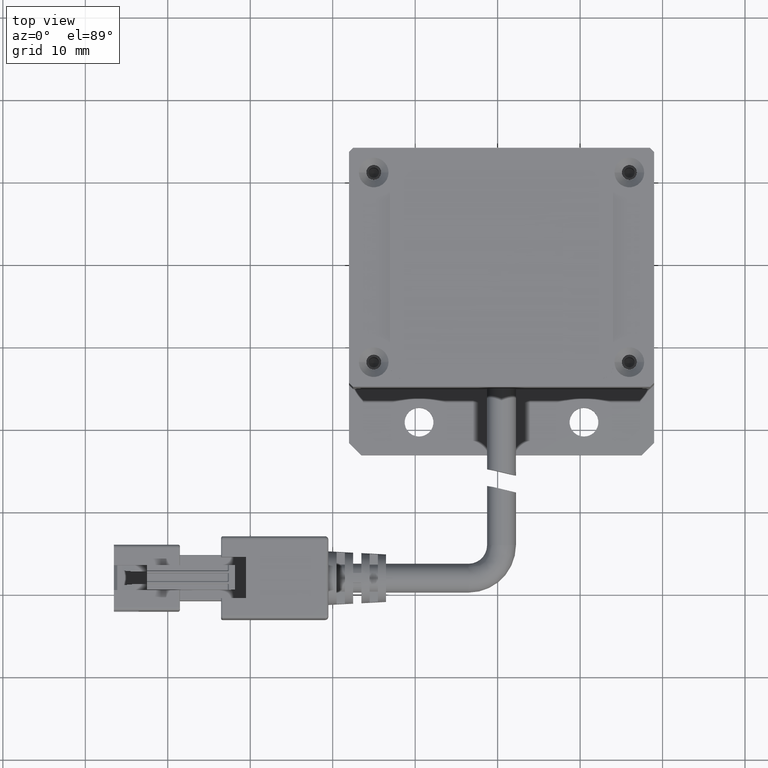
[diagram: clean part render]
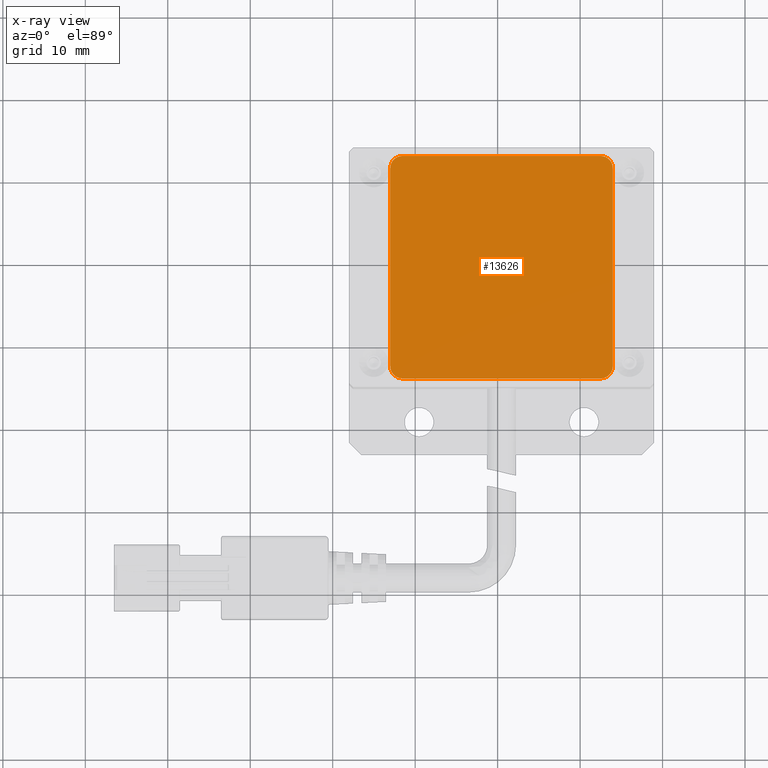
[diagram: x-ray — body ghosted, one internal face saturated and labeled with its STEP entity id]
A machine part, top view, then the same camera in x-ray: the body is ghosted and one INTERNAL B-rep face — a face not visible from any outside direction — is saturated and labeled: STEP entity #13626.
In plain terms, the highlighted planar face has unit normal (0, 0, 1).
Its self-contained STEP definition (entity closure, byte-faithful):
#294 = LINE ( 'NONE', #10610, #12283 ) ;
#511 = CARTESIAN_POINT ( 'NONE',  ( -13.02940053455517100, -12.55364642993505300, 15.99999999998363100 ) ) ;
#695 = CIRCLE ( 'NONE', #18391, 1.500000000000001300 ) ;
#1024 = CIRCLE ( 'NONE', #15726, 1.500000000000001300 ) ;
#1338 = DIRECTION ( 'NONE',  ( 0.0000000000000000000, 0.0000000000000000000, 1.000000000000000000 ) ) ;
#2227 = DIRECTION ( 'NONE',  ( 0.0000000000000000000, 0.0000000000000000000, 1.000000000000000000 ) ) ;
#2974 = VERTEX_POINT ( 'NONE', #15655 ) ;
#4001 = VECTOR ( 'NONE', #15677, 1000.000000000000000 ) ;
#4663 = VERTEX_POINT ( 'NONE', #9354 ) ;
#4776 = CARTESIAN_POINT ( 'NONE',  ( 13.97059946544482900, -12.55364642993505300, 15.99999999998363100 ) ) ;
#5622 = CARTESIAN_POINT ( 'NONE',  ( 12.47059946544482800, -14.05364642993505300, 15.99999999998363100 ) ) ;
#6072 = LINE ( 'NONE', #9579, #17504 ) ;
#6339 = CARTESIAN_POINT ( 'NONE',  ( 12.47059946544482800, -12.55364642993505300, 15.99999999998363100 ) ) ;
#6585 = VECTOR ( 'NONE', #15061, 1000.000000000000000 ) ;
#6655 = VERTEX_POINT ( 'NONE', #5622 ) ;
#6837 = DIRECTION ( 'NONE',  ( 0.0000000000000000000, 0.0000000000000000000, 1.000000000000000000 ) ) ;
#7299 = DIRECTION ( 'NONE',  ( 0.0000000000000000000, 0.0000000000000000000, 1.000000000000000000 ) ) ;
#7587 = ORIENTED_EDGE ( 'NONE', *, *, #10517, .F. ) ;
#7704 = ORIENTED_EDGE ( 'NONE', *, *, #11013, .F. ) ;
#7938 = DIRECTION ( 'NONE',  ( 1.000000000000000000, 0.0000000000000000000, 0.0000000000000000000 ) ) ;
#7980 = AXIS2_PLACEMENT_3D ( 'NONE', #16183, #6837, #17712 ) ;
#8130 = VERTEX_POINT ( 'NONE', #18530 ) ;
#8891 = AXIS2_PLACEMENT_3D ( 'NONE', #11588, #2227, #13194 ) ;
#9354 = CARTESIAN_POINT ( 'NONE',  ( -11.52940053455516900, -14.05364642993505200, 15.99999999998363100 ) ) ;
#9461 = AXIS2_PLACEMENT_3D ( 'NONE', #11954, #7299, #18137 ) ;
#9579 = CARTESIAN_POINT ( 'NONE',  ( -11.52940053455516900, -14.05364642993505200, 15.99999999998363100 ) ) ;
#9603 = CIRCLE ( 'NONE', #8891, 1.500000000000001300 ) ;
#10406 = CARTESIAN_POINT ( 'NONE',  ( 12.47059946544482800, 12.94635357006494500, 15.99999999998363100 ) ) ;
#10517 = EDGE_CURVE ( 'NONE', #19905, #8130, #9603, .T. ) ;
#10610 = CARTESIAN_POINT ( 'NONE',  ( -13.02940053455517100, 11.44635357006494500, 15.99999999998363100 ) ) ;
#10680 = CARTESIAN_POINT ( 'NONE',  ( 12.47059946544482800, 11.44635357006494500, 15.99999999998363100 ) ) ;
#10990 = CARTESIAN_POINT ( 'NONE',  ( -11.52940053455516900, 12.94635357006494500, 15.99999999998363100 ) ) ;
#11013 = EDGE_CURVE ( 'NONE', #8130, #15654, #294, .T. ) ;
#11066 = EDGE_LOOP ( 'NONE', ( #7587, #14000, #15569, #19041, #18071, #14057, #14939, #7704 ) ) ;
#11288 = CIRCLE ( 'NONE', #7980, 1.500000000000001300 ) ;
#11379 = EDGE_CURVE ( 'NONE', #15654, #4663, #11288, .T. ) ;
#11588 = CARTESIAN_POINT ( 'NONE',  ( -11.52940053455516900, 11.44635357006494500, 15.99999999998363100 ) ) ;
#11883 = PLANE ( 'NONE',  #9461 ) ;
#11954 = CARTESIAN_POINT ( 'NONE',  ( -11.52940053455516900, 11.44635357006494500, 15.99999999998363100 ) ) ;
#12209 = EDGE_CURVE ( 'NONE', #4663, #6655, #6072, .T. ) ;
#12270 = DIRECTION ( 'NONE',  ( 1.000000000000000000, 0.0000000000000000000, 0.0000000000000000000 ) ) ;
#12283 = VECTOR ( 'NONE', #19895, 1000.000000000000000 ) ;
#12294 = LINE ( 'NONE', #4776, #4001 ) ;
#12779 = EDGE_CURVE ( 'NONE', #6655, #18917, #695, .T. ) ;
#13064 = CARTESIAN_POINT ( 'NONE',  ( 13.97059946544482900, -12.55364642993505300, 15.99999999998363100 ) ) ;
#13194 = DIRECTION ( 'NONE',  ( 1.000000000000000000, 0.0000000000000000000, 0.0000000000000000000 ) ) ;
#13248 = EDGE_CURVE ( 'NONE', #18917, #2974, #12294, .T. ) ;
#13626 = ADVANCED_FACE ( 'NONE', ( #17548 ), #11883, .F. ) ;
#13758 = EDGE_CURVE ( 'NONE', #2974, #17657, #1024, .T. ) ;
#14000 = ORIENTED_EDGE ( 'NONE', *, *, #14253, .F. ) ;
#14057 = ORIENTED_EDGE ( 'NONE', *, *, #12209, .F. ) ;
#14253 = EDGE_CURVE ( 'NONE', #17657, #19905, #17070, .T. ) ;
#14939 = ORIENTED_EDGE ( 'NONE', *, *, #11379, .F. ) ;
#15061 = DIRECTION ( 'NONE',  ( -1.000000000000000000, 0.0000000000000000000, 0.0000000000000000000 ) ) ;
#15569 = ORIENTED_EDGE ( 'NONE', *, *, #13758, .F. ) ;
#15654 = VERTEX_POINT ( 'NONE', #511 ) ;
#15655 = CARTESIAN_POINT ( 'NONE',  ( 13.97059946544482900, 11.44635357006494500, 15.99999999998363100 ) ) ;
#15677 = DIRECTION ( 'NONE',  ( 0.0000000000000000000, 1.000000000000000000, 0.0000000000000000000 ) ) ;
#15726 = AXIS2_PLACEMENT_3D ( 'NONE', #10680, #1338, #12270 ) ;
#15785 = DIRECTION ( 'NONE',  ( 1.000000000000000000, -7.228014483236697000E-017, 0.0000000000000000000 ) ) ;
#16183 = CARTESIAN_POINT ( 'NONE',  ( -11.52940053455516900, -12.55364642993505300, 15.99999999998363100 ) ) ;
#17070 = LINE ( 'NONE', #10406, #6585 ) ;
#17258 = DIRECTION ( 'NONE',  ( 0.0000000000000000000, 0.0000000000000000000, 1.000000000000000000 ) ) ;
#17416 = CARTESIAN_POINT ( 'NONE',  ( 12.47059946544482800, 12.94635357006494500, 15.99999999998363100 ) ) ;
#17504 = VECTOR ( 'NONE', #15785, 1000.000000000000000 ) ;
#17548 = FACE_OUTER_BOUND ( 'NONE', #11066, .T. ) ;
#17657 = VERTEX_POINT ( 'NONE', #17416 ) ;
#17712 = DIRECTION ( 'NONE',  ( 1.000000000000000000, 0.0000000000000000000, 0.0000000000000000000 ) ) ;
#18071 = ORIENTED_EDGE ( 'NONE', *, *, #12779, .F. ) ;
#18137 = DIRECTION ( 'NONE',  ( 1.000000000000000000, 0.0000000000000000000, -0.0000000000000000000 ) ) ;
#18391 = AXIS2_PLACEMENT_3D ( 'NONE', #6339, #17258, #7938 ) ;
#18530 = CARTESIAN_POINT ( 'NONE',  ( -13.02940053455517100, 11.44635357006494500, 15.99999999998363100 ) ) ;
#18917 = VERTEX_POINT ( 'NONE', #13064 ) ;
#19041 = ORIENTED_EDGE ( 'NONE', *, *, #13248, .F. ) ;
#19895 = DIRECTION ( 'NONE',  ( 0.0000000000000000000, -1.000000000000000000, 0.0000000000000000000 ) ) ;
#19905 = VERTEX_POINT ( 'NONE', #10990 ) ;